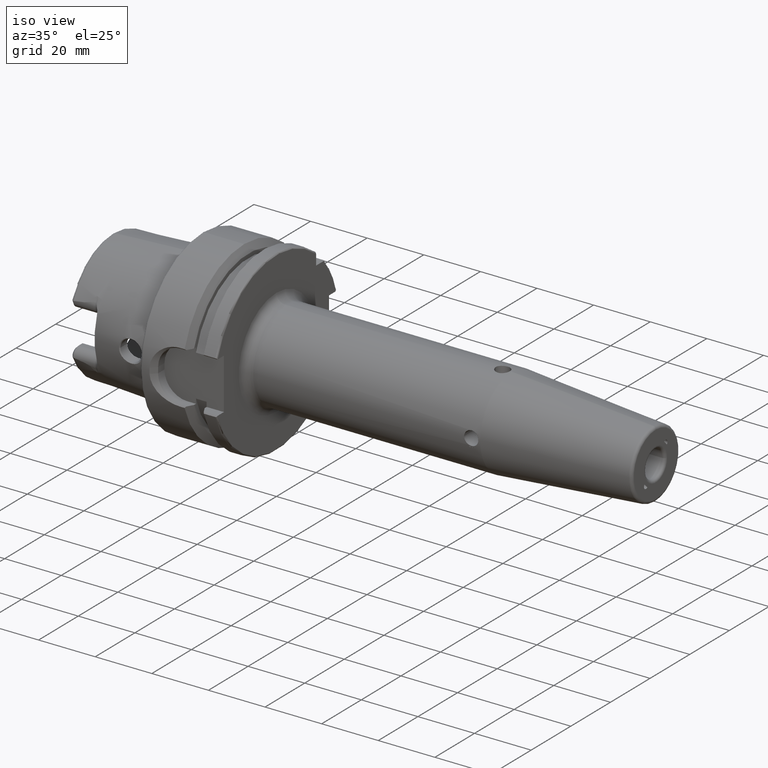
[diagram: clean part render]
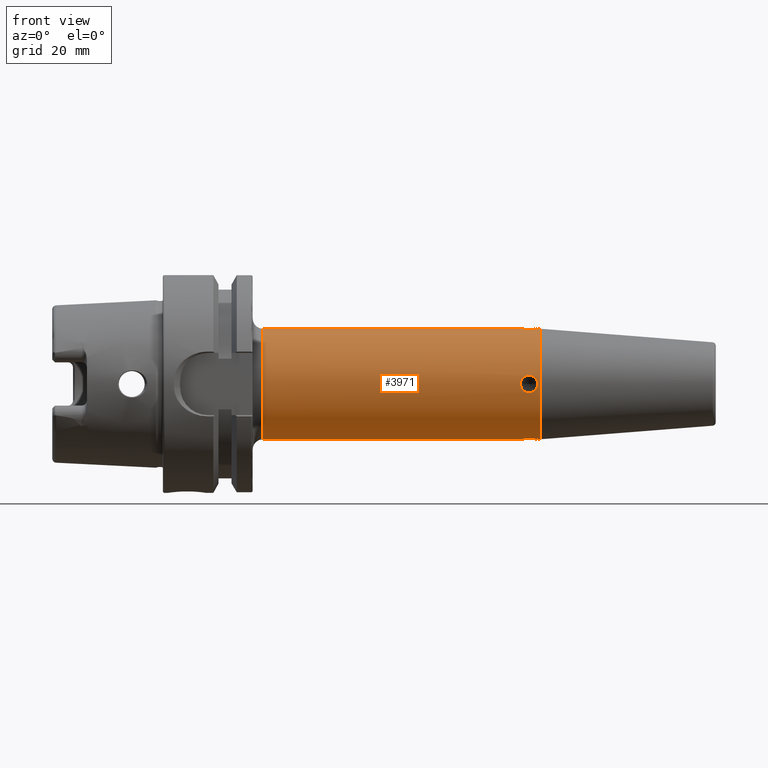
[diagram: tour spotlight — one face highlighted and labeled with its STEP entity id]
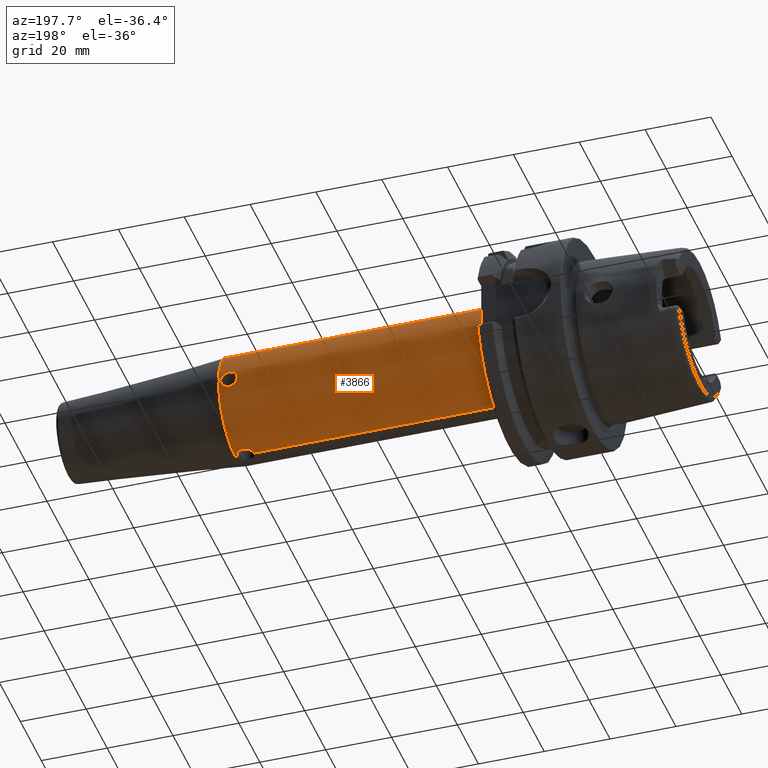
[diagram: tour spotlight — one face highlighted and labeled with its STEP entity id]
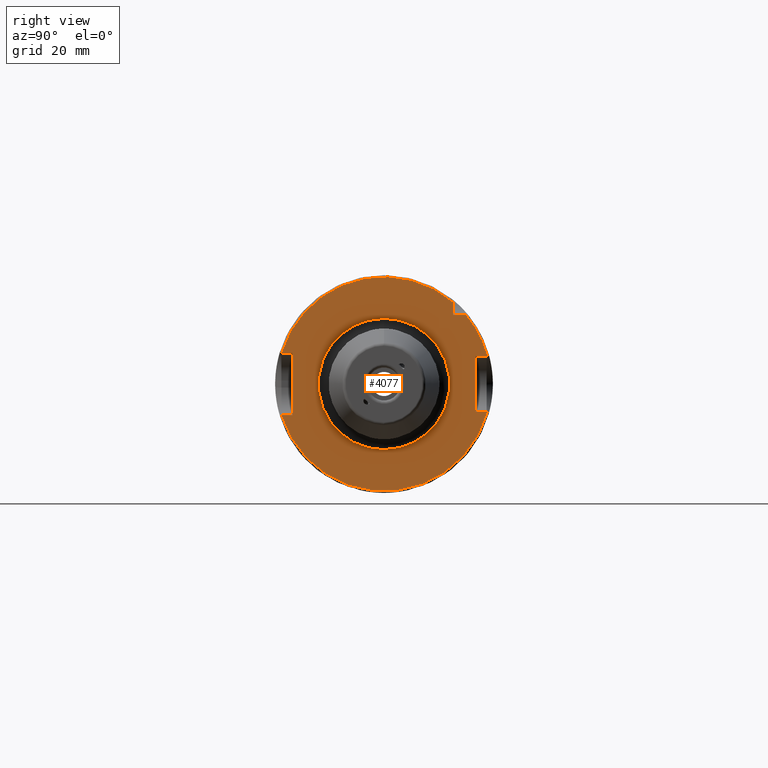
[diagram: tour spotlight — one face highlighted and labeled with its STEP entity id]
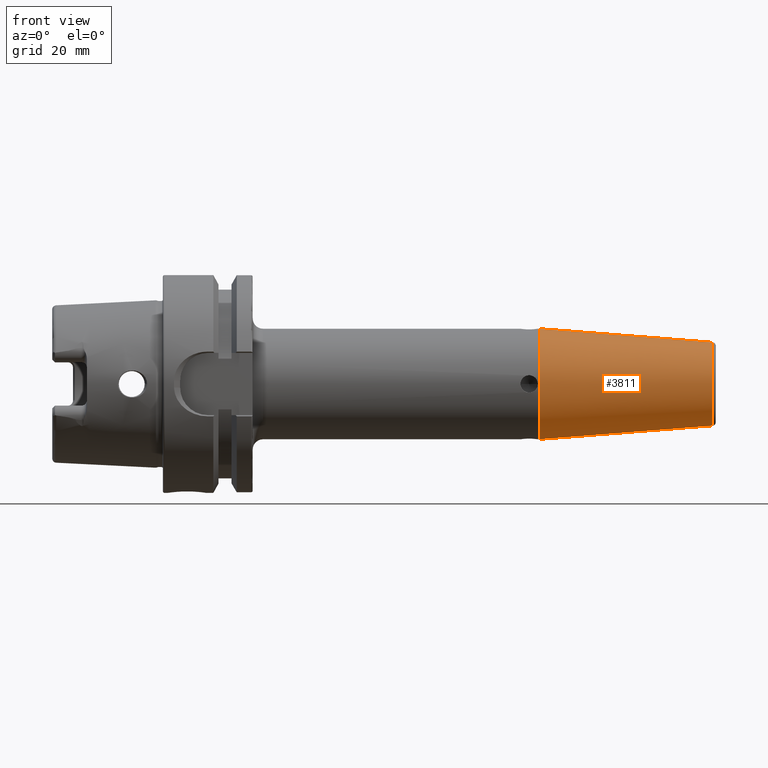
[diagram: tour spotlight — one face highlighted and labeled with its STEP entity id]
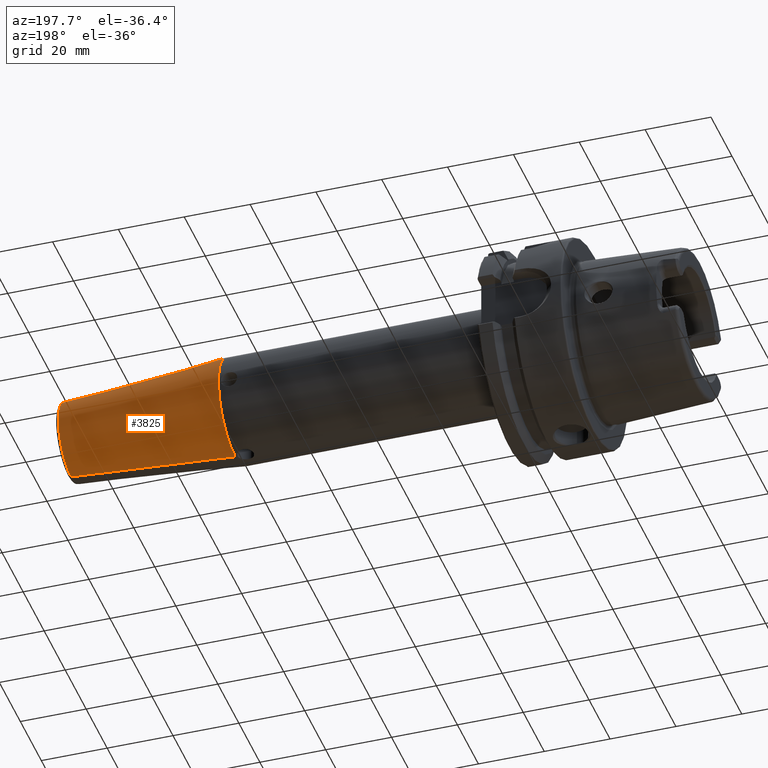
[diagram: tour spotlight — one face highlighted and labeled with its STEP entity id]
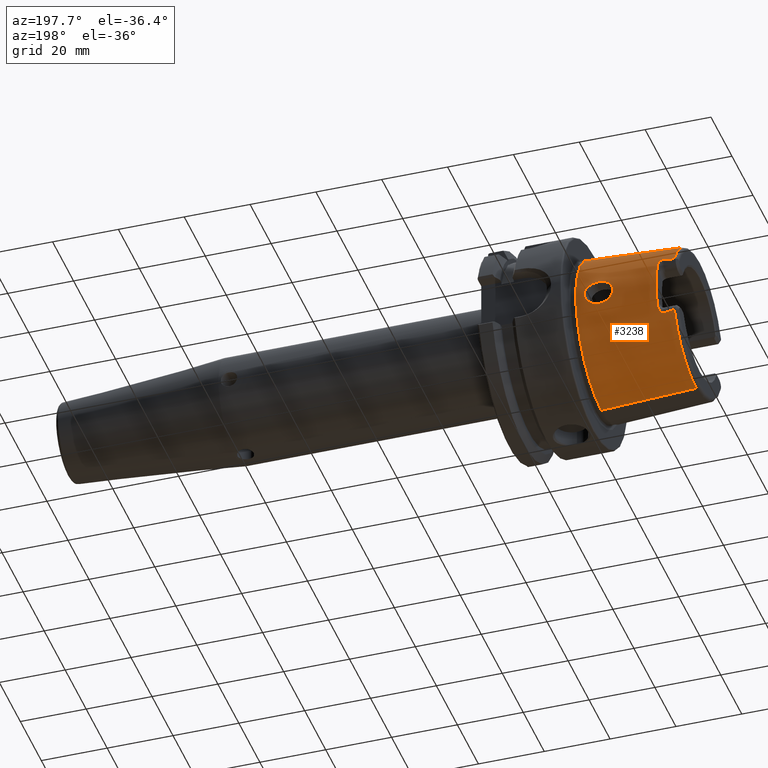
[diagram: tour spotlight — one face highlighted and labeled with its STEP entity id]
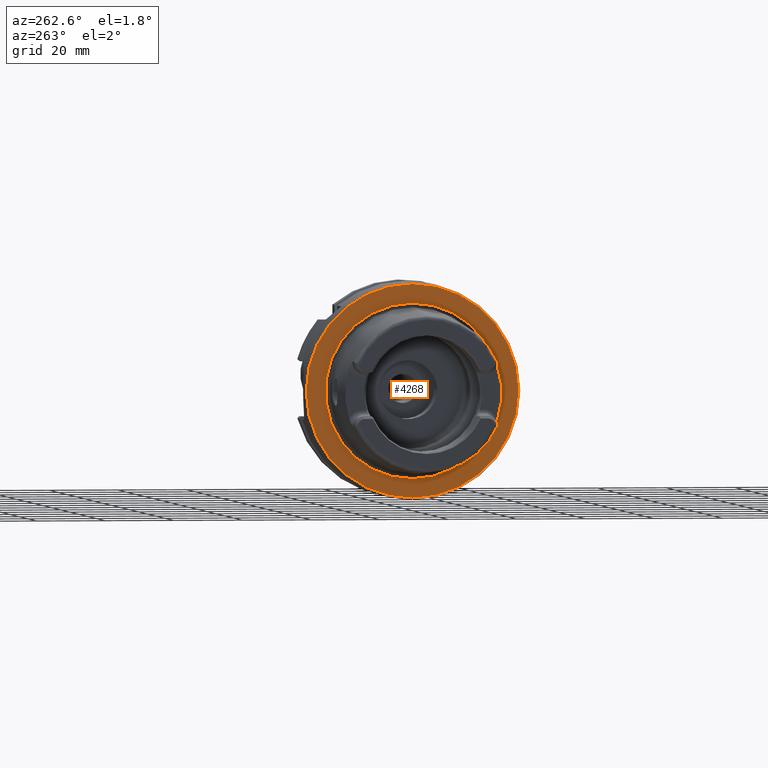
[diagram: tour spotlight — one face highlighted and labeled with its STEP entity id]
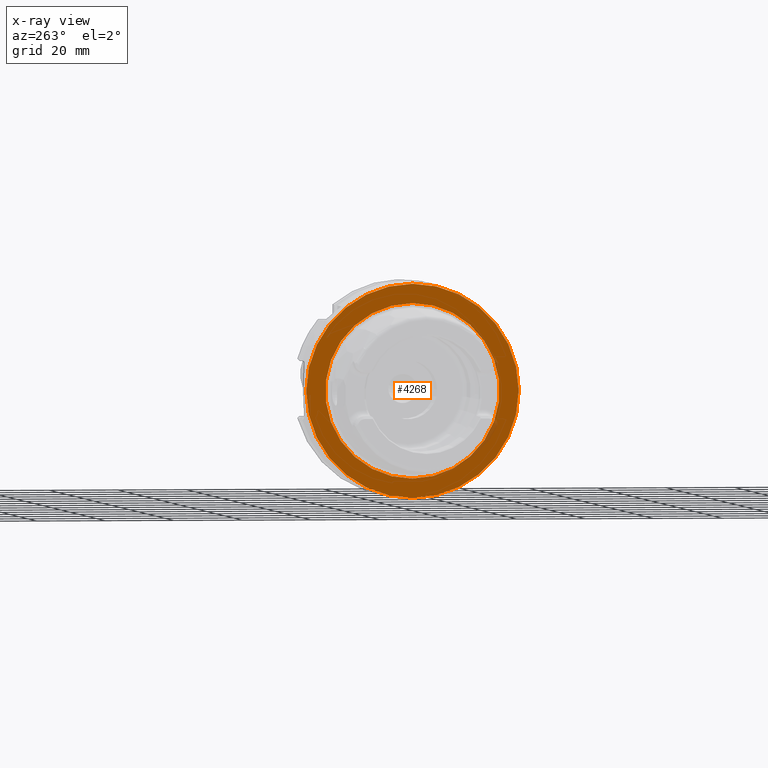
[diagram: x-ray of the same camera — body ghosted, this tour face saturated]
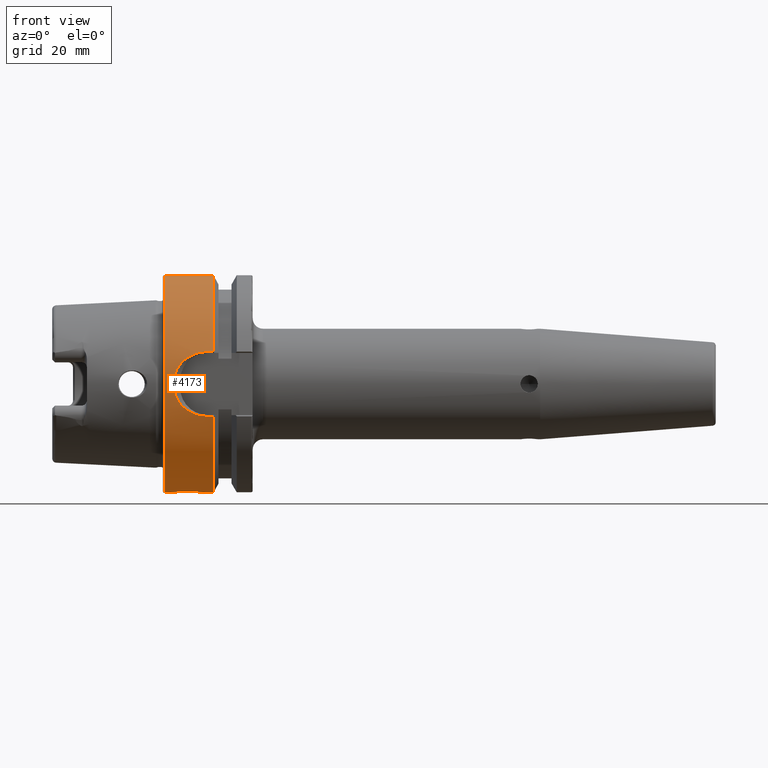
[diagram: tour spotlight — one face highlighted and labeled with its STEP entity id]
A machine part: a face-by-face anatomy tour. The part has 208 B-rep faces; the first image is the clean iso view, then the 8 largest visible faces are spotlighted one at a time (largest first), each with its STEP entity span.

Face 1 — front view, entity #3971. In plain terms, the highlighted cylindrical surface (partial cylindrical patch) has radius 16 mm, axis along (1, 0, 0).
Definition (entity closure, byte-faithful):
#623=CARTESIAN_POINT('',(1.035E2,0.E0,1.6E1));
#636=CARTESIAN_POINT('',(1.085E2,0.E0,1.6E1));
#643=CARTESIAN_POINT('',(1.085E2,0.E0,-1.6E1));
#656=CARTESIAN_POINT('',(1.035E2,0.E0,-1.6E1));
#707=CARTESIAN_POINT('',(1.085E2,0.E0,1.6E1));
#708=CARTESIAN_POINT('',(1.085E2,-2.406910848106E-1,1.6E1));
#709=CARTESIAN_POINT('',(1.084335961199E2,-7.030030814854E-1,1.598942771882E1));
#710=CARTESIAN_POINT('',(1.081362185885E2,-1.365384792778E0,1.594565535037E1));
#711=CARTESIAN_POINT('',(1.076601899238E2,-1.914087789380E0,1.588742890798E1));
#712=CARTESIAN_POINT('',(1.070599425325E2,-2.302352925106E0,1.583439882307E1));
#713=CARTESIAN_POINT('',(1.063576263392E2,-2.508910881645E0,1.580211606748E1));
#714=CARTESIAN_POINT('',(1.056450275450E2,-2.509216912070E0,1.580206431659E1));
#715=CARTESIAN_POINT('',(1.049431041754E2,-2.303772434312E0,1.583418811362E1));
#716=CARTESIAN_POINT('',(1.043415148570E2,-1.915686332052E0,1.588723540130E1));
#717=CARTESIAN_POINT('',(1.038646847672E2,-1.366917028250E0,1.594552943384E1));
#718=CARTESIAN_POINT('',(1.035665444615E2,-7.038092738104E-1,1.598940382258E1));
#719=CARTESIAN_POINT('',(1.035E2,-2.409867561258E-1,1.6E1));
#720=CARTESIAN_POINT('',(1.035E2,0.E0,1.6E1));
#722=DIRECTION('',(-1.E0,0.E0,0.E0));
#723=VECTOR('',#722,6.751810553012E-1);
#724=CARTESIAN_POINT('',(1.091751810553E2,0.E0,1.6E1));
#725=LINE('',#724,#723);
#726=CARTESIAN_POINT('',(1.091751810553E2,0.E0,0.E0));
#727=DIRECTION('',(-1.E0,0.E0,0.E0));
#728=DIRECTION('',(0.E0,0.E0,-1.E0));
#729=AXIS2_PLACEMENT_3D('',#726,#727,#728);
#731=DIRECTION('',(-1.E0,0.E0,0.E0));
#732=VECTOR('',#731,6.751810553012E-1);
#733=CARTESIAN_POINT('',(1.091751810553E2,0.E0,-1.6E1));
#734=LINE('',#733,#732);
#735=CARTESIAN_POINT('',(1.035E2,0.E0,-1.6E1));
#736=CARTESIAN_POINT('',(1.035E2,-2.403258078257E-1,-1.6E1));
#737=CARTESIAN_POINT('',(1.035662428728E2,-7.020323609375E-1,
-1.598945550576E1));
#738=CARTESIAN_POINT('',(1.038626516305E2,-1.363500547548E0,-1.594581241580E1));
#739=CARTESIAN_POINT('',(1.043380045201E2,-1.912439932285E0,-1.588762997320E1));
#740=CARTESIAN_POINT('',(1.049368489963E2,-2.300775971438E0,-1.583463109667E1));
#741=CARTESIAN_POINT('',(1.056383290049E2,-2.508274616566E0,-1.580221809415E1));
#742=CARTESIAN_POINT('',(1.063504892665E2,-2.509886072078E0,-1.580196438855E1));
#743=CARTESIAN_POINT('',(1.070519354182E2,-2.305551394153E0,-1.583388773762E1));
#744=CARTESIAN_POINT('',(1.076526206679E2,-1.921674216976E0,-1.588655886161E1));
#745=CARTESIAN_POINT('',(1.081393580638E2,-1.362274371378E0,-1.594602651143E1));
#746=CARTESIAN_POINT('',(1.084344799273E2,-6.986637795145E-1,
-1.598958917449E1));
#747=CARTESIAN_POINT('',(1.085E2,-2.385551933115E-1,-1.6E1));
#748=CARTESIAN_POINT('',(1.085E2,0.E0,-1.6E1));
#750=DIRECTION('',(-1.E0,6.317523685392E-12,0.E0));
#751=VECTOR('',#750,7.45E1);
#752=CARTESIAN_POINT('',(1.035E2,0.E0,-1.6E1));
#753=LINE('',#752,#751);
#754=CARTESIAN_POINT('',(2.9E1,0.E0,0.E0));
#755=DIRECTION('',(1.E0,0.E0,0.E0));
#756=DIRECTION('',(0.E0,0.E0,1.E0));
#757=AXIS2_PLACEMENT_3D('',#754,#755,#756);
#759=DIRECTION('',(-1.E0,-6.317539211153E-12,0.E0));
#760=VECTOR('',#759,7.45E1);
#761=CARTESIAN_POINT('',(1.035E2,0.E0,1.6E1));
#762=LINE('',#761,#760);
#763=CARTESIAN_POINT('',(1.035E2,-1.6E1,0.E0));
#764=CARTESIAN_POINT('',(1.035E2,-1.6E1,2.648430568656E-1));
#765=CARTESIAN_POINT('',(1.035777814474E2,-1.598747692089E1,7.707641735076E-1));
#766=CARTESIAN_POINT('',(1.039518134384E2,-1.593336509168E1,1.509103475650E0));
#767=CARTESIAN_POINT('',(1.045231044026E2,-1.586783343282E1,2.069021119250E0));
#768=CARTESIAN_POINT('',(1.052460066680E2,-1.581536187345E1,2.427102617519E0));
#769=CARTESIAN_POINT('',(1.060014454735E2,-1.579791688637E1,2.534350807527E0));
#770=CARTESIAN_POINT('',(1.066789869897E2,-1.581387962556E1,2.435334417383E0));
#771=CARTESIAN_POINT('',(1.072709165975E2,-1.585128850274E1,2.184373179277E0));
#772=CARTESIAN_POINT('',(1.077865147204E2,-1.590188908293E1,1.789042367926E0));
#773=CARTESIAN_POINT('',(1.081932147221E2,-1.595381751234E1,1.262469368821E0));
#774=CARTESIAN_POINT('',(1.084486680134E2,-1.599182240470E1,6.304076466830E-1));
#775=CARTESIAN_POINT('',(1.085E2,-1.6E1,2.134258936478E-1));
#776=CARTESIAN_POINT('',(1.085E2,-1.6E1,0.E0));
#778=CARTESIAN_POINT('',(1.085E2,-1.6E1,0.E0));
#779=CARTESIAN_POINT('',(1.085E2,-1.6E1,-2.635483451031E-1));
#780=CARTESIAN_POINT('',(1.084229780918E2,-1.598760093383E1,
-7.672133426015E-1));
#781=CARTESIAN_POINT('',(1.080521103194E2,-1.593391121141E1,-1.503013748298E0));
#782=CARTESIAN_POINT('',(1.074861806439E2,-1.586878438038E1,-2.061759314591E0));
#783=CARTESIAN_POINT('',(1.067689577674E2,-1.581615321455E1,-2.422085784343E0));
#784=CARTESIAN_POINT('',(1.060155923708E2,-1.579791719009E1,-2.534348564628E0));
#785=CARTESIAN_POINT('',(1.053357879004E2,-1.581320906502E1,-2.439589012467E0));
#786=CARTESIAN_POINT('',(1.047406163530E2,-1.585032657461E1,-2.191252376873E0));
#787=CARTESIAN_POINT('',(1.042211783164E2,-1.590098759562E1,-1.796982031722E0));
#788=CARTESIAN_POINT('',(1.038105992753E2,-1.595326780920E1,-1.269781965248E0));
#789=CARTESIAN_POINT('',(1.035518623843E2,-1.599173438551E1,
-6.339596491073E-1));
#790=CARTESIAN_POINT('',(1.035E2,-1.6E1,-2.146986843467E-1));
#791=CARTESIAN_POINT('',(1.035E2,-1.6E1,0.E0));
#3094=CARTESIAN_POINT('',(1.091751810553E2,0.E0,-1.6E1));
#3095=CARTESIAN_POINT('',(1.091751810553E2,0.E0,1.6E1));
#3096=VERTEX_POINT('',#3094);
#3097=VERTEX_POINT('',#3095);
#3110=CARTESIAN_POINT('',(2.9E1,0.E0,1.6E1));
#3111=CARTESIAN_POINT('',(2.9E1,0.E0,-1.6E1));
#3112=VERTEX_POINT('',#3110);
#3113=VERTEX_POINT('',#3111);
#3144=VERTEX_POINT('',#643);
#3145=VERTEX_POINT('',#656);
#3160=VERTEX_POINT('',#623);
#3161=VERTEX_POINT('',#636);
#3168=VERTEX_POINT('',#763);
#3169=VERTEX_POINT('',#776);
#3948=CARTESIAN_POINT('',(1.93E1,0.E0,0.E0));
#3949=DIRECTION('',(1.E0,0.E0,0.E0));
#3950=DIRECTION('',(0.E0,0.E0,1.E0));
#3951=AXIS2_PLACEMENT_3D('',#3948,#3949,#3950);
#3952=CYLINDRICAL_SURFACE('',#3951,1.6E1);
#3953=ORIENTED_EDGE('',*,*,#3939,.F.);
#3954=ORIENTED_EDGE('',*,*,#3856,.F.);
#3955=ORIENTED_EDGE('',*,*,#3805,.F.);
#3956=ORIENTED_EDGE('',*,*,#3853,.T.);
#3958=ORIENTED_EDGE('',*,*,#3957,.F.);
#3959=ORIENTED_EDGE('',*,*,#3849,.T.);
#3961=ORIENTED_EDGE('',*,*,#3960,.F.);
#3962=ORIENTED_EDGE('',*,*,#3845,.F.);
#3963=EDGE_LOOP('',(#3953,#3954,#3955,#3956,#3958,#3959,#3961,#3962));
#3964=FACE_OUTER_BOUND('',#3963,.F.);
#3966=ORIENTED_EDGE('',*,*,#3965,.F.);
#3968=ORIENTED_EDGE('',*,*,#3967,.F.);
#3969=EDGE_LOOP('',(#3966,#3968));
#3970=FACE_BOUND('',#3969,.F.);
#3971=ADVANCED_FACE('',(#3964,#3970),#3952,.T.);
#721=B_SPLINE_CURVE_WITH_KNOTS('',3,(#707,#708,#709,#710,#711,#712,#713,#714,
#715,#716,#717,#718,#719,#720),.UNSPECIFIED.,.F.,.F.,(4,1,1,1,1,1,1,1,1,1,1,4),(
0.E0,9.090909090909E-2,1.818181818182E-1,2.727272727273E-1,3.636363636364E-1,
4.545454545455E-1,5.454545454545E-1,6.363636363636E-1,7.272727272727E-1,
8.181818181818E-1,9.090909090909E-1,1.E0),.UNSPECIFIED.);
#730=CIRCLE('',#729,1.6E1);
#749=B_SPLINE_CURVE_WITH_KNOTS('',3,(#735,#736,#737,#738,#739,#740,#741,#742,
#743,#744,#745,#746,#747,#748),.UNSPECIFIED.,.F.,.F.,(4,1,1,1,1,1,1,1,1,1,1,4),(
0.E0,9.090909090909E-2,1.818181818182E-1,2.727272727273E-1,3.636363636364E-1,
4.545454545455E-1,5.454545454545E-1,6.363636363636E-1,7.272727272727E-1,
8.181818181818E-1,9.090909090909E-1,1.E0),.UNSPECIFIED.);
#758=CIRCLE('',#757,1.6E1);
#777=B_SPLINE_CURVE_WITH_KNOTS('',3,(#763,#764,#765,#766,#767,#768,#769,#770,
#771,#772,#773,#774,#775,#776),.UNSPECIFIED.,.F.,.F.,(4,1,1,1,1,1,1,1,1,1,1,4),(
0.E0,9.090909090909E-2,1.818181818182E-1,2.727272727273E-1,3.636363636364E-1,
4.545454545455E-1,5.454545454545E-1,6.363636363636E-1,7.272727272727E-1,
8.181818181818E-1,9.090909090909E-1,1.E0),.UNSPECIFIED.);
#792=B_SPLINE_CURVE_WITH_KNOTS('',3,(#778,#779,#780,#781,#782,#783,#784,#785,
#786,#787,#788,#789,#790,#791),.UNSPECIFIED.,.F.,.F.,(4,1,1,1,1,1,1,1,1,1,1,4),(
0.E0,9.090909090909E-2,1.818181818182E-1,2.727272727273E-1,3.636363636364E-1,
4.545454545455E-1,5.454545454545E-1,6.363636363636E-1,7.272727272727E-1,
8.181818181818E-1,9.090909090909E-1,1.E0),.UNSPECIFIED.);
#3805=EDGE_CURVE('',#3096,#3097,#730,.T.);
#3845=EDGE_CURVE('',#3160,#3112,#762,.T.);
#3849=EDGE_CURVE('',#3145,#3113,#753,.T.);
#3853=EDGE_CURVE('',#3096,#3144,#734,.T.);
#3856=EDGE_CURVE('',#3097,#3161,#725,.T.);
#3939=EDGE_CURVE('',#3161,#3160,#721,.T.);
#3957=EDGE_CURVE('',#3145,#3144,#749,.T.);
#3960=EDGE_CURVE('',#3112,#3113,#758,.T.);
#3965=EDGE_CURVE('',#3168,#3169,#777,.T.);
#3967=EDGE_CURVE('',#3169,#3168,#792,.T.);

Face 2 — auxiliary view, entity #3866. In plain terms, the highlighted cylindrical surface (partial cylindrical patch) has radius 16 mm, axis along (1, 0, 0).
Definition (entity closure, byte-faithful):
#593=CARTESIAN_POINT('',(1.035E2,1.6E1,0.E0));
#594=CARTESIAN_POINT('',(1.035E2,1.6E1,-2.648430568656E-1));
#595=CARTESIAN_POINT('',(1.035777814474E2,1.598747692089E1,-7.707641735075E-1));
#596=CARTESIAN_POINT('',(1.039518134384E2,1.593336509168E1,-1.509103475650E0));
#597=CARTESIAN_POINT('',(1.045231044026E2,1.586783343282E1,-2.069021119250E0));
#598=CARTESIAN_POINT('',(1.052460066680E2,1.581536187345E1,-2.427102617518E0));
#599=CARTESIAN_POINT('',(1.060014454735E2,1.579791688637E1,-2.534350807527E0));
#600=CARTESIAN_POINT('',(1.066789869897E2,1.581387962556E1,-2.435334417383E0));
#601=CARTESIAN_POINT('',(1.072709165975E2,1.585128850274E1,-2.184373179277E0));
#602=CARTESIAN_POINT('',(1.077865147204E2,1.590188908293E1,-1.789042367926E0));
#603=CARTESIAN_POINT('',(1.081932147221E2,1.595381751234E1,-1.262469368821E0));
#604=CARTESIAN_POINT('',(1.084486680134E2,1.599182240470E1,-6.304076466830E-1));
#605=CARTESIAN_POINT('',(1.085E2,1.6E1,-2.134258936478E-1));
#606=CARTESIAN_POINT('',(1.085E2,1.6E1,0.E0));
#608=CARTESIAN_POINT('',(1.085E2,1.6E1,0.E0));
#609=CARTESIAN_POINT('',(1.085E2,1.6E1,2.635483451031E-1));
#610=CARTESIAN_POINT('',(1.084229780918E2,1.598760093383E1,7.672133426015E-1));
#611=CARTESIAN_POINT('',(1.080521103194E2,1.593391121141E1,1.503013748298E0));
#612=CARTESIAN_POINT('',(1.074861806439E2,1.586878438038E1,2.061759314591E0));
#613=CARTESIAN_POINT('',(1.067689577674E2,1.581615321455E1,2.422085784343E0));
#614=CARTESIAN_POINT('',(1.060155923708E2,1.579791719009E1,2.534348564628E0));
#615=CARTESIAN_POINT('',(1.053357879004E2,1.581320906502E1,2.439589012467E0));
#616=CARTESIAN_POINT('',(1.047406163530E2,1.585032657461E1,2.191252376873E0));
#617=CARTESIAN_POINT('',(1.042211783164E2,1.590098759562E1,1.796982031722E0));
#618=CARTESIAN_POINT('',(1.038105992753E2,1.595326780920E1,1.269781965248E0));
#619=CARTESIAN_POINT('',(1.035518623843E2,1.599173438551E1,6.339596491073E-1));
#620=CARTESIAN_POINT('',(1.035E2,1.6E1,2.146986843467E-1));
#621=CARTESIAN_POINT('',(1.035E2,1.6E1,0.E0));
#623=CARTESIAN_POINT('',(1.035E2,0.E0,1.6E1));
#624=CARTESIAN_POINT('',(1.035E2,2.403258078257E-1,1.6E1));
#625=CARTESIAN_POINT('',(1.035662428728E2,7.020323609375E-1,1.598945550576E1));
#626=CARTESIAN_POINT('',(1.038626516305E2,1.363500547548E0,1.594581241580E1));
#627=CARTESIAN_POINT('',(1.043380045201E2,1.912439932285E0,1.588762997320E1));
#628=CARTESIAN_POINT('',(1.049368489963E2,2.300775971438E0,1.583463109667E1));
#629=CARTESIAN_POINT('',(1.056383290049E2,2.508274616566E0,1.580221809415E1));
#630=CARTESIAN_POINT('',(1.063504892665E2,2.509886072078E0,1.580196438855E1));
#631=CARTESIAN_POINT('',(1.070519354182E2,2.305551394153E0,1.583388773762E1));
#632=CARTESIAN_POINT('',(1.076526206679E2,1.921674216976E0,1.588655886161E1));
#633=CARTESIAN_POINT('',(1.081393580638E2,1.362274371378E0,1.594602651143E1));
#634=CARTESIAN_POINT('',(1.084344799273E2,6.986637795145E-1,1.598958917449E1));
#635=CARTESIAN_POINT('',(1.085E2,2.385551933115E-1,1.6E1));
#636=CARTESIAN_POINT('',(1.085E2,0.E0,1.6E1));
#638=CARTESIAN_POINT('',(2.9E1,0.E0,0.E0));
#639=DIRECTION('',(1.E0,0.E0,0.E0));
#640=DIRECTION('',(0.E0,0.E0,-1.E0));
#641=AXIS2_PLACEMENT_3D('',#638,#639,#640);
#643=CARTESIAN_POINT('',(1.085E2,0.E0,-1.6E1));
#644=CARTESIAN_POINT('',(1.085E2,2.406910848107E-1,-1.6E1));
#645=CARTESIAN_POINT('',(1.084335961199E2,7.030030814854E-1,-1.598942771882E1));
#646=CARTESIAN_POINT('',(1.081362185885E2,1.365384792778E0,-1.594565535037E1));
#647=CARTESIAN_POINT('',(1.076601899238E2,1.914087789380E0,-1.588742890798E1));
#648=CARTESIAN_POINT('',(1.070599425325E2,2.302352925106E0,-1.583439882307E1));
#649=CARTESIAN_POINT('',(1.063576263392E2,2.508910881645E0,-1.580211606748E1));
#650=CARTESIAN_POINT('',(1.056450275450E2,2.509216912070E0,-1.580206431659E1));
#651=CARTESIAN_POINT('',(1.049431041754E2,2.303772434312E0,-1.583418811362E1));
#652=CARTESIAN_POINT('',(1.043415148570E2,1.915686332052E0,-1.588723540130E1));
#653=CARTESIAN_POINT('',(1.038646847672E2,1.366917028250E0,-1.594552943384E1));
#654=CARTESIAN_POINT('',(1.035665444615E2,7.038092738104E-1,-1.598940382258E1));
#655=CARTESIAN_POINT('',(1.035E2,2.409867561258E-1,-1.6E1));
#656=CARTESIAN_POINT('',(1.035E2,0.E0,-1.6E1));
#658=CARTESIAN_POINT('',(1.091751810553E2,0.E0,0.E0));
#659=DIRECTION('',(1.E0,0.E0,0.E0));
#660=DIRECTION('',(0.E0,0.E0,-1.E0));
#661=AXIS2_PLACEMENT_3D('',#658,#659,#660);
#722=DIRECTION('',(-1.E0,0.E0,0.E0));
#723=VECTOR('',#722,6.751810553012E-1);
#724=CARTESIAN_POINT('',(1.091751810553E2,0.E0,1.6E1));
#725=LINE('',#724,#723);
#731=DIRECTION('',(-1.E0,0.E0,0.E0));
#732=VECTOR('',#731,6.751810553012E-1);
#733=CARTESIAN_POINT('',(1.091751810553E2,0.E0,-1.6E1));
#734=LINE('',#733,#732);
#750=DIRECTION('',(-1.E0,6.317523685392E-12,0.E0));
#751=VECTOR('',#750,7.45E1);
#752=CARTESIAN_POINT('',(1.035E2,0.E0,-1.6E1));
#753=LINE('',#752,#751);
#759=DIRECTION('',(-1.E0,-6.317539211153E-12,0.E0));
#760=VECTOR('',#759,7.45E1);
#761=CARTESIAN_POINT('',(1.035E2,0.E0,1.6E1));
#762=LINE('',#761,#760);
#3094=CARTESIAN_POINT('',(1.091751810553E2,0.E0,-1.6E1));
#3095=CARTESIAN_POINT('',(1.091751810553E2,0.E0,1.6E1));
#3096=VERTEX_POINT('',#3094);
#3097=VERTEX_POINT('',#3095);
#3110=CARTESIAN_POINT('',(2.9E1,0.E0,1.6E1));
#3111=CARTESIAN_POINT('',(2.9E1,0.E0,-1.6E1));
#3112=VERTEX_POINT('',#3110);
#3113=VERTEX_POINT('',#3111);
#3144=VERTEX_POINT('',#643);
#3145=VERTEX_POINT('',#656);
#3152=VERTEX_POINT('',#593);
#3153=VERTEX_POINT('',#606);
#3160=VERTEX_POINT('',#623);
#3161=VERTEX_POINT('',#636);
#3838=CARTESIAN_POINT('',(1.93E1,0.E0,0.E0));
#3839=DIRECTION('',(1.E0,0.E0,0.E0));
#3840=DIRECTION('',(0.E0,0.E0,1.E0));
#3841=AXIS2_PLACEMENT_3D('',#3838,#3839,#3840);
#3842=CYLINDRICAL_SURFACE('',#3841,1.6E1);
#3844=ORIENTED_EDGE('',*,*,#3843,.F.);
#3846=ORIENTED_EDGE('',*,*,#3845,.T.);
#3848=ORIENTED_EDGE('',*,*,#3847,.F.);
#3850=ORIENTED_EDGE('',*,*,#3849,.F.);
#3852=ORIENTED_EDGE('',*,*,#3851,.F.);
#3854=ORIENTED_EDGE('',*,*,#3853,.F.);
#3855=ORIENTED_EDGE('',*,*,#3820,.T.);
#3857=ORIENTED_EDGE('',*,*,#3856,.T.);
#3858=EDGE_LOOP('',(#3844,#3846,#3848,#3850,#3852,#3854,#3855,#3857));
#3859=FACE_OUTER_BOUND('',#3858,.F.);
#3861=ORIENTED_EDGE('',*,*,#3860,.F.);
#3863=ORIENTED_EDGE('',*,*,#3862,.F.);
#3864=EDGE_LOOP('',(#3861,#3863));
#3865=FACE_BOUND('',#3864,.F.);
#3866=ADVANCED_FACE('',(#3859,#3865),#3842,.T.);
#607=B_SPLINE_CURVE_WITH_KNOTS('',3,(#593,#594,#595,#596,#597,#598,#599,#600,
#601,#602,#603,#604,#605,#606),.UNSPECIFIED.,.F.,.F.,(4,1,1,1,1,1,1,1,1,1,1,4),(
0.E0,9.090909090909E-2,1.818181818182E-1,2.727272727273E-1,3.636363636364E-1,
4.545454545455E-1,5.454545454545E-1,6.363636363636E-1,7.272727272727E-1,
8.181818181818E-1,9.090909090909E-1,1.E0),.UNSPECIFIED.);
#622=B_SPLINE_CURVE_WITH_KNOTS('',3,(#608,#609,#610,#611,#612,#613,#614,#615,
#616,#617,#618,#619,#620,#621),.UNSPECIFIED.,.F.,.F.,(4,1,1,1,1,1,1,1,1,1,1,4),(
0.E0,9.090909090909E-2,1.818181818182E-1,2.727272727273E-1,3.636363636364E-1,
4.545454545455E-1,5.454545454545E-1,6.363636363636E-1,7.272727272727E-1,
8.181818181818E-1,9.090909090909E-1,1.E0),.UNSPECIFIED.);
#637=B_SPLINE_CURVE_WITH_KNOTS('',3,(#623,#624,#625,#626,#627,#628,#629,#630,
#631,#632,#633,#634,#635,#636),.UNSPECIFIED.,.F.,.F.,(4,1,1,1,1,1,1,1,1,1,1,4),(
0.E0,9.090909090909E-2,1.818181818182E-1,2.727272727273E-1,3.636363636364E-1,
4.545454545455E-1,5.454545454545E-1,6.363636363636E-1,7.272727272727E-1,
8.181818181818E-1,9.090909090909E-1,1.E0),.UNSPECIFIED.);
#642=CIRCLE('',#641,1.6E1);
#657=B_SPLINE_CURVE_WITH_KNOTS('',3,(#643,#644,#645,#646,#647,#648,#649,#650,
#651,#652,#653,#654,#655,#656),.UNSPECIFIED.,.F.,.F.,(4,1,1,1,1,1,1,1,1,1,1,4),(
0.E0,9.090909090909E-2,1.818181818182E-1,2.727272727273E-1,3.636363636364E-1,
4.545454545455E-1,5.454545454545E-1,6.363636363636E-1,7.272727272727E-1,
8.181818181818E-1,9.090909090909E-1,1.E0),.UNSPECIFIED.);
#662=CIRCLE('',#661,1.6E1);
#3820=EDGE_CURVE('',#3096,#3097,#662,.T.);
#3843=EDGE_CURVE('',#3160,#3161,#637,.T.);
#3845=EDGE_CURVE('',#3160,#3112,#762,.T.);
#3847=EDGE_CURVE('',#3113,#3112,#642,.T.);
#3849=EDGE_CURVE('',#3145,#3113,#753,.T.);
#3851=EDGE_CURVE('',#3144,#3145,#657,.T.);
#3853=EDGE_CURVE('',#3096,#3144,#734,.T.);
#3856=EDGE_CURVE('',#3097,#3161,#725,.T.);
#3860=EDGE_CURVE('',#3152,#3153,#607,.T.);
#3862=EDGE_CURVE('',#3153,#3152,#622,.T.);

Face 3 — right view, entity #4077. In plain terms, the highlighted planar face has unit normal (1, 0, 0).
Definition (entity closure, byte-faithful):
#824=DIRECTION('',(0.E0,1.E0,0.E0));
#825=VECTOR('',#824,3.164793948383E0);
#826=CARTESIAN_POINT('',(2.6E1,-2.966479394838E1,-9.E0));
#827=LINE('',#826,#825);
#828=DIRECTION('',(0.E0,0.E0,1.E0));
#829=VECTOR('',#828,1.8E1);
#830=CARTESIAN_POINT('',(2.6E1,-2.65E1,-9.E0));
#831=LINE('',#830,#829);
#832=DIRECTION('',(0.E0,1.E0,0.E0));
#833=VECTOR('',#832,3.164793948383E0);
#834=CARTESIAN_POINT('',(2.6E1,-2.966479394838E1,9.E0));
#835=LINE('',#834,#833);
#836=DIRECTION('',(0.E0,0.E0,-1.E0));
#837=VECTOR('',#836,3.685438564654E0);
#838=CARTESIAN_POINT('',(2.6E1,2.E1,2.368543856465E1));
#839=LINE('',#838,#837);
#840=DIRECTION('',(0.E0,-1.E0,0.E0));
#841=VECTOR('',#840,3.685438564654E0);
#842=CARTESIAN_POINT('',(2.6E1,2.368543856465E1,2.E1));
#843=LINE('',#842,#841);
#844=DIRECTION('',(0.E0,-7.071067811866E-1,-7.071067811865E-1));
#845=VECTOR('',#844,2.782025045905E-1);
#846=CARTESIAN_POINT('',(2.6E1,2.989671887754E1,8.196718877539E0));
#847=LINE('',#846,#845);
#848=DIRECTION('',(0.E0,-1.E0,0.E0));
#849=VECTOR('',#848,3.2E0);
#850=CARTESIAN_POINT('',(2.6E1,2.97E1,8.E0));
#851=LINE('',#850,#849);
#852=DIRECTION('',(0.E0,0.E0,1.E0));
#853=VECTOR('',#852,1.6E1);
#854=CARTESIAN_POINT('',(2.6E1,2.65E1,-8.E0));
#855=LINE('',#854,#853);
#856=DIRECTION('',(0.E0,-1.E0,0.E0));
#857=VECTOR('',#856,3.2E0);
#858=CARTESIAN_POINT('',(2.6E1,2.97E1,-8.E0));
#859=LINE('',#858,#857);
#860=DIRECTION('',(0.E0,-7.071067811865E-1,7.071067811865E-1));
#861=VECTOR('',#860,2.782025045903E-1);
#862=CARTESIAN_POINT('',(2.6E1,2.989671887754E1,-8.196718877539E0));
#863=LINE('',#862,#861);
#864=CARTESIAN_POINT('',(2.6E1,0.E0,0.E0));
#865=DIRECTION('',(1.E0,0.E0,0.E0));
#866=DIRECTION('',(0.E0,0.E0,1.E0));
#867=AXIS2_PLACEMENT_3D('',#864,#865,#866);
#869=CARTESIAN_POINT('',(2.6E1,0.E0,0.E0));
#870=DIRECTION('',(1.E0,0.E0,0.E0));
#871=DIRECTION('',(0.E0,0.E0,-1.E0));
#872=AXIS2_PLACEMENT_3D('',#869,#870,#871);
#879=CARTESIAN_POINT('',(2.6E1,0.E0,0.E0));
#880=DIRECTION('',(1.E0,0.E0,0.E0));
#881=DIRECTION('',(0.E0,-9.569288370446E-1,-2.903225806452E-1));
#882=AXIS2_PLACEMENT_3D('',#879,#880,#881);
#1004=CARTESIAN_POINT('',(2.6E1,2.989671887754E1,-8.196718877539E0));
#2116=CARTESIAN_POINT('',(2.6E1,-2.966479394838E1,9.E0));
#2251=CARTESIAN_POINT('',(2.6E1,-2.966479394838E1,-9.E0));
#2444=CARTESIAN_POINT('',(2.6E1,2.989671887754E1,8.196718877539E0));
#2463=CARTESIAN_POINT('',(2.6E1,0.E0,0.E0));
#2464=DIRECTION('',(1.E0,0.E0,0.E0));
#2465=DIRECTION('',(0.E0,9.644102863722E-1,2.644102863722E-1));
#2466=AXIS2_PLACEMENT_3D('',#2463,#2464,#2465);
#2468=CARTESIAN_POINT('',(2.6E1,2.368543856465E1,2.E1));
#2493=CARTESIAN_POINT('',(2.6E1,2.E1,2.368543856465E1));
#2508=CARTESIAN_POINT('',(2.6E1,0.E0,0.E0));
#2509=DIRECTION('',(1.E0,0.E0,0.E0));
#2510=DIRECTION('',(0.E0,6.451612903226E-1,7.640464053114E-1));
#2511=AXIS2_PLACEMENT_3D('',#2508,#2509,#2510);
#2763=CARTESIAN_POINT('',(2.6E1,2.65E1,-8.E0));
#2764=CARTESIAN_POINT('',(2.6E1,2.65E1,8.E0));
#2765=VERTEX_POINT('',#2763);
#2766=VERTEX_POINT('',#2764);
#2795=CARTESIAN_POINT('',(2.6E1,-2.65E1,-9.E0));
#2796=CARTESIAN_POINT('',(2.6E1,-2.65E1,9.E0));
#2797=VERTEX_POINT('',#2795);
#2798=VERTEX_POINT('',#2796);
#2853=CARTESIAN_POINT('',(2.6E1,2.E1,2.E1));
#2854=VERTEX_POINT('',#2853);
#3066=CARTESIAN_POINT('',(2.6E1,2.97E1,-8.E0));
#3067=VERTEX_POINT('',#3066);
#3068=CARTESIAN_POINT('',(2.6E1,2.97E1,8.E0));
#3069=VERTEX_POINT('',#3068);
#3082=VERTEX_POINT('',#2251);
#3083=VERTEX_POINT('',#1004);
#3086=VERTEX_POINT('',#2444);
#3087=VERTEX_POINT('',#2468);
#3090=VERTEX_POINT('',#2493);
#3091=VERTEX_POINT('',#2116);
#3106=CARTESIAN_POINT('',(2.6E1,0.E0,1.9E1));
#3107=CARTESIAN_POINT('',(2.6E1,0.E0,-1.9E1));
#3108=VERTEX_POINT('',#3106);
#3109=VERTEX_POINT('',#3107);
#4039=CARTESIAN_POINT('',(2.6E1,0.E0,0.E0));
#4040=DIRECTION('',(1.E0,0.E0,0.E0));
#4041=DIRECTION('',(0.E0,0.E0,1.E0));
#4042=AXIS2_PLACEMENT_3D('',#4039,#4040,#4041);
#4043=PLANE('',#4042);
#4045=ORIENTED_EDGE('',*,*,#4044,.F.);
#4047=ORIENTED_EDGE('',*,*,#4046,.T.);
#4049=ORIENTED_EDGE('',*,*,#4048,.T.);
#4051=ORIENTED_EDGE('',*,*,#4050,.F.);
#4053=ORIENTED_EDGE('',*,*,#4052,.F.);
#4055=ORIENTED_EDGE('',*,*,#4054,.T.);
#4057=ORIENTED_EDGE('',*,*,#4056,.F.);
#4059=ORIENTED_EDGE('',*,*,#4058,.F.);
#4061=ORIENTED_EDGE('',*,*,#4060,.T.);
#4063=ORIENTED_EDGE('',*,*,#4062,.T.);
#4065=ORIENTED_EDGE('',*,*,#4064,.F.);
#4067=ORIENTED_EDGE('',*,*,#4066,.F.);
#4069=ORIENTED_EDGE('',*,*,#4068,.F.);
#4070=EDGE_LOOP('',(#4045,#4047,#4049,#4051,#4053,#4055,#4057,#4059,#4061,#4063,
#4065,#4067,#4069));
#4071=FACE_OUTER_BOUND('',#4070,.F.);
#4072=ORIENTED_EDGE('',*,*,#4029,.T.);
#4074=ORIENTED_EDGE('',*,*,#4073,.T.);
#4075=EDGE_LOOP('',(#4072,#4074));
#4076=FACE_BOUND('',#4075,.F.);
#4077=ADVANCED_FACE('',(#4071,#4076),#4043,.T.);
#868=CIRCLE('',#867,1.9E1);
#873=CIRCLE('',#872,1.9E1);
#883=CIRCLE('',#882,3.1E1);
#2467=CIRCLE('',#2466,3.1E1);
#2512=CIRCLE('',#2511,3.1E1);
#4029=EDGE_CURVE('',#3108,#3109,#868,.T.);
#4044=EDGE_CURVE('',#3082,#3083,#883,.T.);
#4046=EDGE_CURVE('',#3082,#2797,#827,.T.);
#4048=EDGE_CURVE('',#2797,#2798,#831,.T.);
#4050=EDGE_CURVE('',#3091,#2798,#835,.T.);
#4052=EDGE_CURVE('',#3090,#3091,#2512,.T.);
#4054=EDGE_CURVE('',#3090,#2854,#839,.T.);
#4056=EDGE_CURVE('',#3087,#2854,#843,.T.);
#4058=EDGE_CURVE('',#3086,#3087,#2467,.T.);
#4060=EDGE_CURVE('',#3086,#3069,#847,.T.);
#4062=EDGE_CURVE('',#3069,#2766,#851,.T.);
#4064=EDGE_CURVE('',#2765,#2766,#855,.T.);
#4066=EDGE_CURVE('',#3067,#2765,#859,.T.);
#4068=EDGE_CURVE('',#3083,#3067,#863,.T.);
#4073=EDGE_CURVE('',#3109,#3108,#873,.T.);

Face 4 — front view, entity #3811. In plain terms, the highlighted conical surface has half-angle 4.5 deg.
Definition (entity closure, byte-faithful):
#570=CARTESIAN_POINT('',(1.590784590957E2,0.E0,0.E0));
#571=DIRECTION('',(-1.E0,0.E0,0.E0));
#572=DIRECTION('',(0.E0,0.E0,-1.E0));
#573=AXIS2_PLACEMENT_3D('',#570,#571,#572);
#575=DIRECTION('',(-9.969173337331E-1,3.168150741359E-12,-7.845909572785E-2));
#576=VECTOR('',#575,5.005758888111E1);
#577=CARTESIAN_POINT('',(1.590784590958E2,-1.585880278894E-10,
-1.207252684207E1));
#578=LINE('',#577,#576);
#579=DIRECTION('',(-9.969173337331E-1,-3.168143634809E-12,7.845909572785E-2));
#580=VECTOR('',#579,5.005758888111E1);
#581=CARTESIAN_POINT('',(1.590784590958E2,1.585876721527E-10,1.207252684207E1));
#582=LINE('',#581,#580);
#726=CARTESIAN_POINT('',(1.091751810553E2,0.E0,0.E0));
#727=DIRECTION('',(-1.E0,0.E0,0.E0));
#728=DIRECTION('',(0.E0,0.E0,-1.E0));
#729=AXIS2_PLACEMENT_3D('',#726,#727,#728);
#3094=CARTESIAN_POINT('',(1.091751810553E2,0.E0,-1.6E1));
#3095=CARTESIAN_POINT('',(1.091751810553E2,0.E0,1.6E1));
#3096=VERTEX_POINT('',#3094);
#3097=VERTEX_POINT('',#3095);
#3114=CARTESIAN_POINT('',(1.590784590957E2,0.E0,-1.207252684207E1));
#3115=CARTESIAN_POINT('',(1.590784590957E2,0.E0,1.207252684207E1));
#3116=VERTEX_POINT('',#3114);
#3117=VERTEX_POINT('',#3115);
#3797=CARTESIAN_POINT('',(1.341268200755E2,0.E0,0.E0));
#3798=DIRECTION('',(-1.E0,0.E0,0.E0));
#3799=DIRECTION('',(0.E0,0.E0,-1.E0));
#3800=AXIS2_PLACEMENT_3D('',#3797,#3798,#3799);
#3801=CONICAL_SURFACE('',#3800,1.403626342104E1,4.5E0);
#3802=ORIENTED_EDGE('',*,*,#3787,.F.);
#3804=ORIENTED_EDGE('',*,*,#3803,.T.);
#3806=ORIENTED_EDGE('',*,*,#3805,.T.);
#3808=ORIENTED_EDGE('',*,*,#3807,.F.);
#3809=EDGE_LOOP('',(#3802,#3804,#3806,#3808));
#3810=FACE_OUTER_BOUND('',#3809,.F.);
#3811=ADVANCED_FACE('',(#3810),#3801,.T.);
#574=CIRCLE('',#573,1.207252684207E1);
#730=CIRCLE('',#729,1.6E1);
#3787=EDGE_CURVE('',#3116,#3117,#574,.T.);
#3803=EDGE_CURVE('',#3116,#3096,#578,.T.);
#3805=EDGE_CURVE('',#3096,#3097,#730,.T.);
#3807=EDGE_CURVE('',#3117,#3097,#582,.T.);

Face 5 — auxiliary view, entity #3825. In plain terms, the highlighted conical surface has half-angle 4.5 deg.
Definition (entity closure, byte-faithful):
#575=DIRECTION('',(-9.969173337331E-1,3.168150741359E-12,-7.845909572785E-2));
#576=VECTOR('',#575,5.005758888111E1);
#577=CARTESIAN_POINT('',(1.590784590958E2,-1.585880278894E-10,
-1.207252684207E1));
#578=LINE('',#577,#576);
#579=DIRECTION('',(-9.969173337331E-1,-3.168143634809E-12,7.845909572785E-2));
#580=VECTOR('',#579,5.005758888111E1);
#581=CARTESIAN_POINT('',(1.590784590958E2,1.585876721527E-10,1.207252684207E1));
#582=LINE('',#581,#580);
#583=CARTESIAN_POINT('',(1.590784590957E2,0.E0,0.E0));
#584=DIRECTION('',(-1.E0,0.E0,0.E0));
#585=DIRECTION('',(0.E0,0.E0,1.E0));
#586=AXIS2_PLACEMENT_3D('',#583,#584,#585);
#658=CARTESIAN_POINT('',(1.091751810553E2,0.E0,0.E0));
#659=DIRECTION('',(1.E0,0.E0,0.E0));
#660=DIRECTION('',(0.E0,0.E0,-1.E0));
#661=AXIS2_PLACEMENT_3D('',#658,#659,#660);
#3094=CARTESIAN_POINT('',(1.091751810553E2,0.E0,-1.6E1));
#3095=CARTESIAN_POINT('',(1.091751810553E2,0.E0,1.6E1));
#3096=VERTEX_POINT('',#3094);
#3097=VERTEX_POINT('',#3095);
#3114=CARTESIAN_POINT('',(1.590784590957E2,0.E0,-1.207252684207E1));
#3115=CARTESIAN_POINT('',(1.590784590957E2,0.E0,1.207252684207E1));
#3116=VERTEX_POINT('',#3114);
#3117=VERTEX_POINT('',#3115);
#3812=CARTESIAN_POINT('',(1.341268200755E2,0.E0,0.E0));
#3813=DIRECTION('',(-1.E0,0.E0,0.E0));
#3814=DIRECTION('',(0.E0,0.E0,-1.E0));
#3815=AXIS2_PLACEMENT_3D('',#3812,#3813,#3814);
#3816=CONICAL_SURFACE('',#3815,1.403626342104E1,4.5E0);
#3818=ORIENTED_EDGE('',*,*,#3817,.F.);
#3819=ORIENTED_EDGE('',*,*,#3807,.T.);
#3821=ORIENTED_EDGE('',*,*,#3820,.F.);
#3822=ORIENTED_EDGE('',*,*,#3803,.F.);
#3823=EDGE_LOOP('',(#3818,#3819,#3821,#3822));
#3824=FACE_OUTER_BOUND('',#3823,.F.);
#3825=ADVANCED_FACE('',(#3824),#3816,.T.);
#587=CIRCLE('',#586,1.207252684207E1);
#662=CIRCLE('',#661,1.6E1);
#3803=EDGE_CURVE('',#3116,#3096,#578,.T.);
#3807=EDGE_CURVE('',#3117,#3097,#582,.T.);
#3817=EDGE_CURVE('',#3117,#3116,#587,.T.);
#3820=EDGE_CURVE('',#3096,#3097,#662,.T.);

Face 6 — auxiliary view, entity #3238. In plain terms, the highlighted conical surface has half-angle 2.868 deg.
Definition (entity closure, byte-faithful):
#2=CARTESIAN_POINT('',(-3.086004333271E1,0.E0,0.E0));
#3=DIRECTION('',(-1.E0,0.E0,0.E0));
#4=DIRECTION('',(0.E0,9.163649919573E-1,-4.003438540993E-1));
#5=AXIS2_PLACEMENT_3D('',#2,#3,#4);
#7=CARTESIAN_POINT('',(-2.000078966146E0,0.E0,0.E0));
#8=DIRECTION('',(-1.E0,0.E0,0.E0));
#9=DIRECTION('',(0.E0,0.E0,1.E0));
#10=AXIS2_PLACEMENT_3D('',#7,#8,#9);
#12=CARTESIAN_POINT('',(-3.086004333271E1,0.E0,0.E0));
#13=DIRECTION('',(-1.E0,0.E0,0.E0));
#14=DIRECTION('',(0.E0,0.E0,1.E0));
#15=AXIS2_PLACEMENT_3D('',#12,#13,#14);
#17=CARTESIAN_POINT('',(-3.086004333271E1,2.086981840766E1,9.117659021249E0));
#18=CARTESIAN_POINT('',(-3.053477016229E1,2.087026407252E1,9.157343468693E0));
#19=CARTESIAN_POINT('',(-2.990731725920E1,2.086951854295E1,9.237138009720E0));
#20=CARTESIAN_POINT('',(-2.903749175968E1,2.086333964170E1,9.358087934639E0));
#21=CARTESIAN_POINT('',(-2.823306039663E1,2.085177035668E1,9.481640423811E0));
#22=CARTESIAN_POINT('',(-2.773735868303E1,2.083999307163E1,9.567019157167E0));
#23=CARTESIAN_POINT('',(-2.75E1,2.083289994314E1,9.610781850025E0));
#25=CARTESIAN_POINT('',(-3.086004333271E1,2.086981840766E1,-9.117659021249E0));
#26=CARTESIAN_POINT('',(-3.053477016229E1,2.087026407252E1,-9.157343468693E0));
#27=CARTESIAN_POINT('',(-2.990731725920E1,2.086951854295E1,-9.237138009720E0));
#28=CARTESIAN_POINT('',(-2.903749175968E1,2.086333964170E1,-9.358087934639E0));
#29=CARTESIAN_POINT('',(-2.823306039663E1,2.085177035668E1,-9.481640423811E0));
#30=CARTESIAN_POINT('',(-2.773735868303E1,2.083999307163E1,-9.567019157167E0));
#31=CARTESIAN_POINT('',(-2.75E1,2.083289994314E1,-9.610781850025E0));
#33=CARTESIAN_POINT('',(-1.304439190524E1,2.366711362744E1,0.E0));
#34=CARTESIAN_POINT('',(-1.304439190524E1,2.366711362744E1,-2.692296203512E-1));
#35=CARTESIAN_POINT('',(-1.298596588633E1,2.366095548437E1,-7.915478808268E-1));
#36=CARTESIAN_POINT('',(-1.273593529021E1,2.363615494345E1,-1.538491121410E0));
#37=CARTESIAN_POINT('',(-1.234085581199E1,2.360161826823E1,-2.213541098239E0));
#38=CARTESIAN_POINT('',(-1.181419542757E1,2.356442533815E1,-2.805250832799E0));
#39=CARTESIAN_POINT('',(-1.117137997799E1,2.353291472613E1,-3.293080560877E0));
#40=CARTESIAN_POINT('',(-1.044411763446E1,2.351584278645E1,-3.653416998785E0));
#41=CARTESIAN_POINT('',(-9.665961713705E0,2.351947741575E1,-3.874611692795E0));
#42=CARTESIAN_POINT('',(-8.868249773196E0,2.354653765362E1,-3.954597009881E0));
#43=CARTESIAN_POINT('',(-8.066538054402E0,2.359739017255E1,-3.894486132971E0));
#44=CARTESIAN_POINT('',(-7.282895667530E0,2.366966238930E1,-3.694792672991E0));
#45=CARTESIAN_POINT('',(-6.526798753436E0,2.376050761714E1,-3.345491144455E0));
#46=CARTESIAN_POINT('',(-5.863814319433E0,2.385701628222E1,-2.868853306938E0));
#47=CARTESIAN_POINT('',(-5.312865344565E0,2.394874241525E1,-2.282242940895E0));
#48=CARTESIAN_POINT('',(-4.894562356430E0,2.402528280422E1,-1.608353345469E0));
#49=CARTESIAN_POINT('',(-4.618382192889E0,2.407904412959E1,-8.401112834544E-1));
#50=CARTESIAN_POINT('',(-4.550876813471E0,2.409262908457E1,-2.877835390342E-1));
#51=CARTESIAN_POINT('',(-4.550876813471E0,2.409262908457E1,0.E0));
#53=CARTESIAN_POINT('',(-4.550876813471E0,2.409262908457E1,0.E0));
#54=CARTESIAN_POINT('',(-4.550876813471E0,2.409262908457E1,2.859611557422E-1));
#55=CARTESIAN_POINT('',(-4.617596309412E0,2.407920413971E1,8.352613928779E-1));
#56=CARTESIAN_POINT('',(-4.890694973026E0,2.402602347294E1,1.599880277375E0));
#57=CARTESIAN_POINT('',(-5.306466792903E0,2.394987071124E1,2.273906799261E0));
#58=CARTESIAN_POINT('',(-5.856510230644E0,2.385815053501E1,2.862665496108E0));
#59=CARTESIAN_POINT('',(-6.521241332787E0,2.376122989035E1,3.342466827978E0));
#60=CARTESIAN_POINT('',(-7.278646414858E0,2.367010677752E1,3.693348295885E0));
#61=CARTESIAN_POINT('',(-8.062694821519E0,2.359768581097E1,3.893886174943E0));
#62=CARTESIAN_POINT('',(-8.864889034770E0,2.354669857096E1,3.954654604967E0));
#63=CARTESIAN_POINT('',(-9.662752662742E0,2.351953711749E1,3.875232791745E0));
#64=CARTESIAN_POINT('',(-1.044126794827E1,2.351581579089E1,3.654504198045E0));
#65=CARTESIAN_POINT('',(-1.116829063931E1,2.353280579750E1,3.294940241881E0));
#66=CARTESIAN_POINT('',(-1.181105545196E1,2.356423840462E1,2.808070161338E0));
#67=CARTESIAN_POINT('',(-1.233792159236E1,2.360138355943E1,2.217544614980E0));
#68=CARTESIAN_POINT('',(-1.273424784845E1,2.363599247778E1,1.542402709130E0));
#69=CARTESIAN_POINT('',(-1.298554429293E1,2.366091077517E1,7.941137450600E-1));
#70=CARTESIAN_POINT('',(-1.304439190524E1,2.366711362744E1,2.702086010916E-1));
#71=CARTESIAN_POINT('',(-1.304439190524E1,2.366711362744E1,0.E0));
#144=CARTESIAN_POINT('',(-2.75E1,2.083289994314E1,-9.610781850025E0));
#145=CARTESIAN_POINT('',(-2.743975062531E1,2.083109947580E1,-9.621890248698E0));
#146=CARTESIAN_POINT('',(-2.731974848713E1,2.083872619074E1,-9.619737940193E0));
#147=CARTESIAN_POINT('',(-2.713788283439E1,2.088499706769E1,-9.541042090458E0));
#148=CARTESIAN_POINT('',(-2.696734572208E1,2.095414112914E1,-9.409321527965E0));
#149=CARTESIAN_POINT('',(-2.680749153758E1,2.103583876480E1,-9.245355378728E0));
#150=CARTESIAN_POINT('',(-2.665257735252E1,2.112843537783E1,-9.051716021862E0));
#151=CARTESIAN_POINT('',(-2.650302698832E1,2.123047210424E1,-8.829512386182E0));
#152=CARTESIAN_POINT('',(-2.636248241751E1,2.133984318010E1,-8.581008391494E0));
#153=CARTESIAN_POINT('',(-2.623108108915E1,2.145913591165E1,-8.296954135832E0));
#154=CARTESIAN_POINT('',(-2.611489180659E1,2.158976731555E1,-7.968405102356E0));
#155=CARTESIAN_POINT('',(-2.602652288189E1,2.173158022596E1,-7.587530024420E0));
#156=CARTESIAN_POINT('',(-2.6E1,2.183164499938E1,-7.296342131266E0));
#157=CARTESIAN_POINT('',(-2.6E1,2.188224159781E1,-7.141305064401E0));
#173=CARTESIAN_POINT('',(-2.6E1,0.E0,0.E0));
#174=DIRECTION('',(1.E0,0.E0,0.E0));
#175=DIRECTION('',(0.E0,9.506556522061E-1,-3.102480151887E-1));
#176=AXIS2_PLACEMENT_3D('',#173,#174,#175);
#1277=DIRECTION('',(-9.987474310439E-1,-1.043943068730E-10,-5.003567710383E-2));
#1278=VECTOR('',#1277,2.889623723507E1);
#1279=CARTESIAN_POINT('',(-2.000000627352E0,3.013169918385E-9,
2.422041252602E1));
#1280=LINE('',#1279,#1278);
#1286=DIRECTION('',(-9.987474310439E-1,1.043954869385E-10,5.003567710383E-2));
#1287=VECTOR('',#1286,2.889623723507E1);
#1288=CARTESIAN_POINT('',(-2.000000627352E0,-3.013171862045E-9,
-2.422041252602E1));
#1289=LINE('',#1288,#1287);
#1445=CARTESIAN_POINT('',(-2.6E1,2.188224159781E1,7.141305064400E0));
#1446=CARTESIAN_POINT('',(-2.6E1,2.183974716074E1,7.271515653360E0));
#1447=CARTESIAN_POINT('',(-2.601871282871E1,2.175468164903E1,7.521324142367E0));
#1448=CARTESIAN_POINT('',(-2.608831272694E1,2.162788937119E1,7.867819964950E0));
#1449=CARTESIAN_POINT('',(-2.618560132166E1,2.150728532315E1,8.177555427085E0));
#1450=CARTESIAN_POINT('',(-2.630091098865E1,2.139363544444E1,8.454351951900E0));
#1451=CARTESIAN_POINT('',(-2.642777532615E1,2.128749113051E1,8.701079139516E0));
#1452=CARTESIAN_POINT('',(-2.656205230822E1,2.118893349758E1,8.920855574258E0));
#1453=CARTESIAN_POINT('',(-2.670233126283E1,2.109762227452E1,9.116811046229E0));
#1454=CARTESIAN_POINT('',(-2.684756686438E1,2.101419232942E1,9.289367907590E0));
#1455=CARTESIAN_POINT('',(-2.700261207520E1,2.093857757737E1,9.439508455813E0));
#1456=CARTESIAN_POINT('',(-2.716024259459E1,2.087834082786E1,9.552833408787E0));
#1457=CARTESIAN_POINT('',(-2.733041362146E1,2.083774391445E1,9.620584457154E0));
#1458=CARTESIAN_POINT('',(-2.744319606554E1,2.083120243791E1,9.621255000217E0));
#1459=CARTESIAN_POINT('',(-2.75E1,2.083289994314E1,9.610781850025E0));
#2751=CARTESIAN_POINT('',(-2.000078966146E0,0.E0,-2.422042115892E1));
#2752=CARTESIAN_POINT('',(-2.000078966146E0,0.E0,2.422042115892E1));
#2753=VERTEX_POINT('',#2751);
#2754=VERTEX_POINT('',#2752);
#2896=CARTESIAN_POINT('',(-2.6E1,2.188224159781E1,-7.141305064400E0));
#2898=VERTEX_POINT('',#2896);
#2900=CARTESIAN_POINT('',(-2.75E1,2.083289994314E1,-9.610781850025E0));
#2902=VERTEX_POINT('',#2900);
#2904=CARTESIAN_POINT('',(-2.75E1,2.083289994314E1,9.610781850025E0));
#2906=VERTEX_POINT('',#2904);
#2908=CARTESIAN_POINT('',(-2.6E1,2.188224159781E1,7.141305064400E0));
#2910=VERTEX_POINT('',#2908);
#2926=CARTESIAN_POINT('',(-3.086004333271E1,0.E0,-2.277456973022E1));
#2928=VERTEX_POINT('',#2926);
#2930=CARTESIAN_POINT('',(-3.086004333271E1,2.086981840766E1,
-9.117659021249E0));
#2931=VERTEX_POINT('',#2930);
#2932=CARTESIAN_POINT('',(-3.086004333271E1,0.E0,2.277456973022E1));
#2933=CARTESIAN_POINT('',(-3.086004333271E1,2.086981840766E1,9.117659021249E0));
#2934=VERTEX_POINT('',#2932);
#2935=VERTEX_POINT('',#2933);
#3014=VERTEX_POINT('',#33);
#3015=VERTEX_POINT('',#51);
#3205=CARTESIAN_POINT('',(-1.643002229390E1,0.E0,0.E0));
#3206=DIRECTION('',(1.E0,0.E0,0.E0));
#3207=DIRECTION('',(0.E0,0.E0,1.E0));
#3208=AXIS2_PLACEMENT_3D('',#3205,#3206,#3207);
#3209=CONICAL_SURFACE('',#3208,2.349749739118E1,2.86805556E0);
#3211=ORIENTED_EDGE('',*,*,#3210,.T.);
#3213=ORIENTED_EDGE('',*,*,#3212,.F.);
#3215=ORIENTED_EDGE('',*,*,#3214,.F.);
#3217=ORIENTED_EDGE('',*,*,#3216,.T.);
#3219=ORIENTED_EDGE('',*,*,#3218,.T.);
#3221=ORIENTED_EDGE('',*,*,#3220,.T.);
#3223=ORIENTED_EDGE('',*,*,#3222,.F.);
#3225=ORIENTED_EDGE('',*,*,#3224,.F.);
#3227=ORIENTED_EDGE('',*,*,#3226,.F.);
#3229=ORIENTED_EDGE('',*,*,#3228,.F.);
#3230=EDGE_LOOP('',(#3211,#3213,#3215,#3217,#3219,#3221,#3223,#3225,#3227,
#3229));
#3231=FACE_OUTER_BOUND('',#3230,.F.);
#3233=ORIENTED_EDGE('',*,*,#3232,.F.);
#3235=ORIENTED_EDGE('',*,*,#3234,.F.);
#3236=EDGE_LOOP('',(#3233,#3235));
#3237=FACE_BOUND('',#3236,.F.);
#3238=ADVANCED_FACE('',(#3231,#3237),#3209,.T.);
#6=CIRCLE('',#5,2.277456973022E1);
#11=CIRCLE('',#10,2.422042115892E1);
#16=CIRCLE('',#15,2.277456973022E1);
#24=B_SPLINE_CURVE_WITH_KNOTS('',3,(#17,#18,#19,#20,#21,#22,#23),.UNSPECIFIED.,
.F.,.F.,(4,1,1,1,4),(0.E0,2.5E-1,5.E-1,7.5E-1,1.E0),.UNSPECIFIED.);
#32=B_SPLINE_CURVE_WITH_KNOTS('',3,(#25,#26,#27,#28,#29,#30,#31),.UNSPECIFIED.,
.F.,.F.,(4,1,1,1,4),(0.E0,2.5E-1,5.E-1,7.5E-1,1.E0),.UNSPECIFIED.);
#52=B_SPLINE_CURVE_WITH_KNOTS('',3,(#33,#34,#35,#36,#37,#38,#39,#40,#41,#42,#43,
#44,#45,#46,#47,#48,#49,#50,#51),.UNSPECIFIED.,.F.,.F.,(4,1,1,1,1,1,1,1,1,1,1,1,
1,1,1,1,4),(0.E0,6.25E-2,1.25E-1,1.875E-1,2.5E-1,3.125E-1,3.75E-1,4.375E-1,
5.E-1,5.625E-1,6.25E-1,6.875E-1,7.5E-1,8.125E-1,8.75E-1,9.375E-1,1.E0),
.UNSPECIFIED.);
#72=B_SPLINE_CURVE_WITH_KNOTS('',3,(#53,#54,#55,#56,#57,#58,#59,#60,#61,#62,#63,
#64,#65,#66,#67,#68,#69,#70,#71),.UNSPECIFIED.,.F.,.F.,(4,1,1,1,1,1,1,1,1,1,1,1,
1,1,1,1,4),(0.E0,6.25E-2,1.25E-1,1.875E-1,2.5E-1,3.125E-1,3.75E-1,4.375E-1,
5.E-1,5.625E-1,6.25E-1,6.875E-1,7.5E-1,8.125E-1,8.75E-1,9.375E-1,1.E0),
.UNSPECIFIED.);
#158=B_SPLINE_CURVE_WITH_KNOTS('',3,(#144,#145,#146,#147,#148,#149,#150,#151,
#152,#153,#154,#155,#156,#157),.UNSPECIFIED.,.F.,.F.,(4,1,1,1,1,1,1,1,1,1,1,4),(
0.E0,9.090909090909E-2,1.818181818182E-1,2.727272727273E-1,3.636363636364E-1,
4.545454545455E-1,5.454545454545E-1,6.363636363636E-1,7.272727272727E-1,
8.181818181818E-1,9.090909090909E-1,1.E0),.UNSPECIFIED.);
#177=CIRCLE('',#176,2.301805237998E1);
#1460=B_SPLINE_CURVE_WITH_KNOTS('',3,(#1445,#1446,#1447,#1448,#1449,#1450,#1451,
#1452,#1453,#1454,#1455,#1456,#1457,#1458,#1459),.UNSPECIFIED.,.F.,.F.,(4,1,1,1,
1,1,1,1,1,1,1,1,4),(0.E0,8.333333333333E-2,1.666666666667E-1,2.5E-1,
3.333333333333E-1,4.166666666667E-1,5.E-1,5.833333333333E-1,6.666666666667E-1,
7.5E-1,8.333333333333E-1,9.166666666667E-1,1.E0),.UNSPECIFIED.);
#3210=EDGE_CURVE('',#2931,#2928,#6,.T.);
#3212=EDGE_CURVE('',#2753,#2928,#1289,.T.);
#3214=EDGE_CURVE('',#2754,#2753,#11,.T.);
#3216=EDGE_CURVE('',#2754,#2934,#1280,.T.);
#3218=EDGE_CURVE('',#2934,#2935,#16,.T.);
#3220=EDGE_CURVE('',#2935,#2906,#24,.T.);
#3222=EDGE_CURVE('',#2910,#2906,#1460,.T.);
#3224=EDGE_CURVE('',#2898,#2910,#177,.T.);
#3226=EDGE_CURVE('',#2902,#2898,#158,.T.);
#3228=EDGE_CURVE('',#2931,#2902,#32,.T.);
#3232=EDGE_CURVE('',#3014,#3015,#52,.T.);
#3234=EDGE_CURVE('',#3015,#3014,#72,.T.);

Face 7 — auxiliary view, entity #4268. An x-ray twin of the same camera follows (body ghosted, this face saturated) — the face is partly hidden behind the body. In plain terms, the highlighted planar face has unit normal (1, 0, 0).
Definition (entity closure, byte-faithful):
#1111=CARTESIAN_POINT('',(0.E0,0.E0,0.E0));
#1112=DIRECTION('',(1.E0,0.E0,0.E0));
#1113=DIRECTION('',(0.E0,0.E0,-1.E0));
#1114=AXIS2_PLACEMENT_3D('',#1111,#1112,#1113);
#1116=CARTESIAN_POINT('',(0.E0,0.E0,0.E0));
#1117=DIRECTION('',(1.E0,0.E0,0.E0));
#1118=DIRECTION('',(0.E0,0.E0,1.E0));
#1119=AXIS2_PLACEMENT_3D('',#1116,#1117,#1118);
#1121=CARTESIAN_POINT('',(0.E0,0.E0,0.E0));
#1122=DIRECTION('',(-1.E0,0.E0,0.E0));
#1123=DIRECTION('',(0.E0,0.E0,1.E0));
#1124=AXIS2_PLACEMENT_3D('',#1121,#1122,#1123);
#1126=CARTESIAN_POINT('',(0.E0,0.E0,0.E0));
#1127=DIRECTION('',(-1.E0,0.E0,0.E0));
#1128=DIRECTION('',(0.E0,0.E0,-1.E0));
#1129=AXIS2_PLACEMENT_3D('',#1126,#1127,#1128);
#2743=CARTESIAN_POINT('',(0.E0,0.E0,-2.54204E1));
#2744=CARTESIAN_POINT('',(0.E0,0.E0,2.54204E1));
#2745=VERTEX_POINT('',#2743);
#2746=VERTEX_POINT('',#2744);
#3072=CARTESIAN_POINT('',(0.E0,0.E0,3.1E1));
#3073=CARTESIAN_POINT('',(0.E0,1.138921523207E-14,-3.1E1));
#3074=VERTEX_POINT('',#3072);
#3075=VERTEX_POINT('',#3073);
#4252=CARTESIAN_POINT('',(0.E0,0.E0,0.E0));
#4253=DIRECTION('',(1.E0,0.E0,0.E0));
#4254=DIRECTION('',(0.E0,0.E0,1.E0));
#4255=AXIS2_PLACEMENT_3D('',#4252,#4253,#4254);
#4256=PLANE('',#4255);
#4257=ORIENTED_EDGE('',*,*,#4242,.F.);
#4259=ORIENTED_EDGE('',*,*,#4258,.F.);
#4260=EDGE_LOOP('',(#4257,#4259));
#4261=FACE_OUTER_BOUND('',#4260,.F.);
#4263=ORIENTED_EDGE('',*,*,#4262,.F.);
#4265=ORIENTED_EDGE('',*,*,#4264,.F.);
#4266=EDGE_LOOP('',(#4263,#4265));
#4267=FACE_BOUND('',#4266,.F.);
#4268=ADVANCED_FACE('',(#4261,#4267),#4256,.F.);
#1115=CIRCLE('',#1114,2.54204E1);
#1120=CIRCLE('',#1119,2.54204E1);
#1125=CIRCLE('',#1124,3.1E1);
#1130=CIRCLE('',#1129,3.1E1);
#4242=EDGE_CURVE('',#3074,#3075,#1125,.T.);
#4258=EDGE_CURVE('',#3075,#3074,#1130,.T.);
#4262=EDGE_CURVE('',#2745,#2746,#1115,.T.);
#4264=EDGE_CURVE('',#2746,#2745,#1120,.T.);

Face 8 — front view, entity #4173. In plain terms, the highlighted cylindrical surface (partial cylindrical patch) has radius 31.5 mm, axis along (1, 0, 0).
Definition (entity closure, byte-faithful):
#908=CARTESIAN_POINT('',(5.E-1,0.E0,0.E0));
#909=DIRECTION('',(-1.E0,0.E0,0.E0));
#910=DIRECTION('',(0.E0,0.E0,-1.E0));
#911=AXIS2_PLACEMENT_3D('',#908,#909,#910);
#913=DIRECTION('',(-1.E0,-1.152682623977E-12,0.E0));
#914=VECTOR('',#913,1.412250090457E1);
#915=CARTESIAN_POINT('',(1.462250090457E1,0.E0,3.15E1));
#916=LINE('',#915,#914);
#917=CARTESIAN_POINT('',(1.462250090457E1,0.E0,0.E0));
#918=DIRECTION('',(1.E0,0.E0,0.E0));
#919=DIRECTION('',(0.E0,0.E0,1.E0));
#920=AXIS2_PLACEMENT_3D('',#917,#918,#919);
#922=DIRECTION('',(1.E0,0.E0,0.E0));
#923=VECTOR('',#922,1.622500904567E0);
#924=CARTESIAN_POINT('',(1.3E1,-3.007314630073E1,9.373146300730E0));
#925=LINE('',#924,#923);
#926=CARTESIAN_POINT('',(3.215877017138E0,-3.148412298286E1,1.E0));
#927=CARTESIAN_POINT('',(3.229667999164E0,-3.147033200084E1,1.434196974159E0));
#928=CARTESIAN_POINT('',(3.331305148110E0,-3.142562614716E1,2.280557906877E0));
#929=CARTESIAN_POINT('',(3.689639209254E0,-3.131261894329E1,3.497824814117E0));
#930=CARTESIAN_POINT('',(4.224387561762E0,-3.116591969202E1,4.617731549331E0));
#931=CARTESIAN_POINT('',(4.908842568303E0,-3.099748287679E1,5.632070943113E0));
#932=CARTESIAN_POINT('',(5.712482050064E0,-3.082045350516E1,6.526140660742E0));
#933=CARTESIAN_POINT('',(6.610248790574E0,-3.064607991101E1,7.296749719208E0));
#934=CARTESIAN_POINT('',(7.571522800308E0,-3.048524436851E1,7.938452155490E0));
#935=CARTESIAN_POINT('',(8.586678709411E0,-3.034375148093E1,8.460694722024E0));
#936=CARTESIAN_POINT('',(9.645764018389E0,-3.022707288446E1,8.866638984176E0));
#937=CARTESIAN_POINT('',(1.074128466146E1,-3.013966717822E1,9.158034230836E0));
#938=CARTESIAN_POINT('',(1.186302386205E1,-3.008546433696E1,9.333758812896E0));
#939=CARTESIAN_POINT('',(1.261911814478E1,-3.007314630073E1,9.373146300730E0));
#940=CARTESIAN_POINT('',(1.3E1,-3.007314630073E1,9.373146300730E0));
#942=CARTESIAN_POINT('',(3.215877017138E0,-3.148412298286E1,1.E0));
#943=CARTESIAN_POINT('',(3.194702323244E0,-3.150529767676E1,3.333333333333E-1));
#944=CARTESIAN_POINT('',(3.194702323244E0,-3.150529767676E1,
-3.333333333333E-1));
#945=CARTESIAN_POINT('',(3.215877017138E0,-3.148412298286E1,-1.E0));
#947=CARTESIAN_POINT('',(1.3E1,-3.007314630073E1,-9.373146300730E0));
#948=CARTESIAN_POINT('',(1.261853332120E1,-3.007314630073E1,-9.373146300730E0));
#949=CARTESIAN_POINT('',(1.186054965003E1,-3.008548964654E1,-9.333679878844E0));
#950=CARTESIAN_POINT('',(1.073214946153E1,-3.014018055062E1,-9.156365746563E0));
#951=CARTESIAN_POINT('',(9.631145388051E0,-3.022842683235E1,-8.862067281056E0));
#952=CARTESIAN_POINT('',(8.571278418516E0,-3.034570143073E1,-8.453719776647E0));
#953=CARTESIAN_POINT('',(7.561968874510E0,-3.048678333923E1,-7.932465852427E0));
#954=CARTESIAN_POINT('',(6.609353099417E0,-3.064632014939E1,-7.295523702098E0));
#955=CARTESIAN_POINT('',(5.719379577085E0,-3.081907849533E1,-6.532291860359E0));
#956=CARTESIAN_POINT('',(4.918592559215E0,-3.099521802093E1,-5.644324145033E0));
#957=CARTESIAN_POINT('',(4.231158808814E0,-3.116413549913E1,-4.629983120332E0));
#958=CARTESIAN_POINT('',(3.691949597490E0,-3.131190693228E1,-3.504990575318E0));
#959=CARTESIAN_POINT('',(3.331145804748E0,-3.142565099898E1,-2.281032014602E0));
#960=CARTESIAN_POINT('',(3.229661047521E0,-3.147033895248E1,-1.433978107804E0));
#961=CARTESIAN_POINT('',(3.215877017138E0,-3.148412298286E1,-1.E0));
#963=DIRECTION('',(1.E0,0.E0,0.E0));
#964=VECTOR('',#963,1.622500904567E0);
#965=CARTESIAN_POINT('',(1.3E1,-3.007314630073E1,-9.373146300730E0));
#966=LINE('',#965,#964);
#967=CARTESIAN_POINT('',(1.462250090457E1,0.E0,0.E0));
#968=DIRECTION('',(1.E0,0.E0,0.E0));
#969=DIRECTION('',(0.E0,-9.547030571660E-1,-2.975602000232E-1));
#970=AXIS2_PLACEMENT_3D('',#967,#968,#969);
#972=DIRECTION('',(-1.E0,0.E0,0.E0));
#973=VECTOR('',#972,2.122500904567E0);
#974=CARTESIAN_POINT('',(1.462250090457E1,0.E0,-3.15E1));
#975=LINE('',#974,#973);
#976=CARTESIAN_POINT('',(1.5E0,0.E0,-3.15E1));
#977=CARTESIAN_POINT('',(1.5E0,-3.588951255127E-1,-3.15E1));
#978=CARTESIAN_POINT('',(1.581138327990E0,-1.048548521747E0,-3.148782376809E1));
#979=CARTESIAN_POINT('',(1.910588073966E0,-2.006564336888E0,-3.144040908891E1));
#980=CARTESIAN_POINT('',(2.415944971875E0,-2.861556117510E0,-3.137324069068E1));
#981=CARTESIAN_POINT('',(3.093296979582E0,-3.621570072850E0,-3.129379480836E1));
#982=CARTESIAN_POINT('',(3.932860337858E0,-4.259632130927E0,-3.121237817627E1));
#983=CARTESIAN_POINT('',(4.908163968859E0,-4.738763837594E0,-3.114229734464E1));
#984=CARTESIAN_POINT('',(5.940629906439E0,-5.023428099724E0,-3.109702626598E1));
#985=CARTESIAN_POINT('',(7.003177692584E0,-5.118459986461E0,-3.108133735981E1));
#986=CARTESIAN_POINT('',(8.065102610065E0,-5.022310651440E0,-3.109720856453E1));
#987=CARTESIAN_POINT('',(9.095890701222E0,-4.737167472201E0,-3.114254165967E1));
#988=CARTESIAN_POINT('',(1.007119715688E1,-4.257247395534E0,-3.121271241342E1));
#989=CARTESIAN_POINT('',(1.091189752168E1,-3.616987749219E0,-3.129434443001E1));
#990=CARTESIAN_POINT('',(1.158923361556E1,-2.854578399489E0,-3.137389265772E1));
#991=CARTESIAN_POINT('',(1.209279314293E1,-1.998956427454E0,-3.144088492167E1));
#992=CARTESIAN_POINT('',(1.241973333056E1,-1.043420158419E0,-3.148795551285E1));
#993=CARTESIAN_POINT('',(1.25E1,-3.569041729368E-1,-3.15E1));
#994=CARTESIAN_POINT('',(1.25E1,0.E0,-3.15E1));
#996=DIRECTION('',(-1.E0,-3.500340280064E-12,0.E0));
#997=VECTOR('',#996,1.E0);
#998=CARTESIAN_POINT('',(1.5E0,0.E0,-3.15E1));
#999=LINE('',#998,#997);
#1018=CARTESIAN_POINT('',(1.25E1,0.E0,-3.15E1));
#1036=CARTESIAN_POINT('',(1.5E0,0.E0,-3.15E1));
#2851=CARTESIAN_POINT('',(1.462250090457E1,0.E0,3.15E1));
#2852=VERTEX_POINT('',#2851);
#2994=VERTEX_POINT('',#1018);
#2995=VERTEX_POINT('',#1036);
#3004=CARTESIAN_POINT('',(1.462250090457E1,0.E0,-3.15E1));
#3005=VERTEX_POINT('',#3004);
#3028=CARTESIAN_POINT('',(1.3E1,-3.007314630073E1,-9.373146300730E0));
#3029=CARTESIAN_POINT('',(1.462250090457E1,-3.007314630073E1,
-9.373146300730E0));
#3030=VERTEX_POINT('',#3028);
#3031=VERTEX_POINT('',#3029);
#3032=VERTEX_POINT('',#961);
#3033=VERTEX_POINT('',#942);
#3034=VERTEX_POINT('',#940);
#3035=CARTESIAN_POINT('',(1.462250090457E1,-3.007314630073E1,9.373146300730E0));
#3036=VERTEX_POINT('',#3035);
#3076=CARTESIAN_POINT('',(5.E-1,0.E0,3.15E1));
#3077=CARTESIAN_POINT('',(5.E-1,0.E0,-3.15E1));
#3078=VERTEX_POINT('',#3076);
#3079=VERTEX_POINT('',#3077);
#4142=CARTESIAN_POINT('',(0.E0,0.E0,0.E0));
#4143=DIRECTION('',(1.E0,0.E0,0.E0));
#4144=DIRECTION('',(0.E0,0.E0,1.E0));
#4145=AXIS2_PLACEMENT_3D('',#4142,#4143,#4144);
#4146=CYLINDRICAL_SURFACE('',#4145,3.15E1);
#4148=ORIENTED_EDGE('',*,*,#4147,.T.);
#4150=ORIENTED_EDGE('',*,*,#4149,.F.);
#4152=ORIENTED_EDGE('',*,*,#4151,.T.);
#4154=ORIENTED_EDGE('',*,*,#4153,.F.);
#4156=ORIENTED_EDGE('',*,*,#4155,.F.);
#4158=ORIENTED_EDGE('',*,*,#4157,.T.);
#4160=ORIENTED_EDGE('',*,*,#4159,.F.);
#4162=ORIENTED_EDGE('',*,*,#4161,.T.);
#4164=ORIENTED_EDGE('',*,*,#4163,.T.);
#4166=ORIENTED_EDGE('',*,*,#4165,.T.);
#4168=ORIENTED_EDGE('',*,*,#4167,.F.);
#4170=ORIENTED_EDGE('',*,*,#4169,.T.);
#4171=EDGE_LOOP('',(#4148,#4150,#4152,#4154,#4156,#4158,#4160,#4162,#4164,#4166,
#4168,#4170));
#4172=FACE_OUTER_BOUND('',#4171,.F.);
#4173=ADVANCED_FACE('',(#4172),#4146,.T.);
#912=CIRCLE('',#911,3.15E1);
#921=CIRCLE('',#920,3.15E1);
#941=B_SPLINE_CURVE_WITH_KNOTS('',3,(#926,#927,#928,#929,#930,#931,#932,#933,
#934,#935,#936,#937,#938,#939,#940),.UNSPECIFIED.,.F.,.F.,(4,1,1,1,1,1,1,1,1,1,
1,1,4),(0.E0,8.333333333333E-2,1.666666666667E-1,2.5E-1,3.333333333333E-1,
4.166666666667E-1,5.E-1,5.833333333333E-1,6.666666666667E-1,7.5E-1,
8.333333333333E-1,9.166666666667E-1,1.E0),.UNSPECIFIED.);
#946=B_SPLINE_CURVE_WITH_KNOTS('',3,(#942,#943,#944,#945),.UNSPECIFIED.,.F.,.F.,
(4,4),(0.E0,1.E0),.UNSPECIFIED.);
#962=B_SPLINE_CURVE_WITH_KNOTS('',3,(#947,#948,#949,#950,#951,#952,#953,#954,
#955,#956,#957,#958,#959,#960,#961),.UNSPECIFIED.,.F.,.F.,(4,1,1,1,1,1,1,1,1,1,
1,1,4),(0.E0,8.333333333333E-2,1.666666666667E-1,2.5E-1,3.333333333333E-1,
4.166666666667E-1,5.E-1,5.833333333333E-1,6.666666666667E-1,7.5E-1,
8.333333333333E-1,9.166666666667E-1,1.E0),.UNSPECIFIED.);
#971=CIRCLE('',#970,3.15E1);
#995=B_SPLINE_CURVE_WITH_KNOTS('',3,(#976,#977,#978,#979,#980,#981,#982,#983,
#984,#985,#986,#987,#988,#989,#990,#991,#992,#993,#994),.UNSPECIFIED.,.F.,.F.,
(4,1,1,1,1,1,1,1,1,1,1,1,1,1,1,1,4),(0.E0,6.25E-2,1.25E-1,1.875E-1,2.5E-1,
3.125E-1,3.75E-1,4.375E-1,5.E-1,5.625E-1,6.25E-1,6.875E-1,7.5E-1,8.125E-1,
8.75E-1,9.375E-1,1.E0),.UNSPECIFIED.);
#4147=EDGE_CURVE('',#3079,#3078,#912,.T.);
#4149=EDGE_CURVE('',#2852,#3078,#916,.T.);
#4151=EDGE_CURVE('',#2852,#3036,#921,.T.);
#4153=EDGE_CURVE('',#3034,#3036,#925,.T.);
#4155=EDGE_CURVE('',#3033,#3034,#941,.T.);
#4157=EDGE_CURVE('',#3033,#3032,#946,.T.);
#4159=EDGE_CURVE('',#3030,#3032,#962,.T.);
#4161=EDGE_CURVE('',#3030,#3031,#966,.T.);
#4163=EDGE_CURVE('',#3031,#3005,#971,.T.);
#4165=EDGE_CURVE('',#3005,#2994,#975,.T.);
#4167=EDGE_CURVE('',#2995,#2994,#995,.T.);
#4169=EDGE_CURVE('',#2995,#3079,#999,.T.);